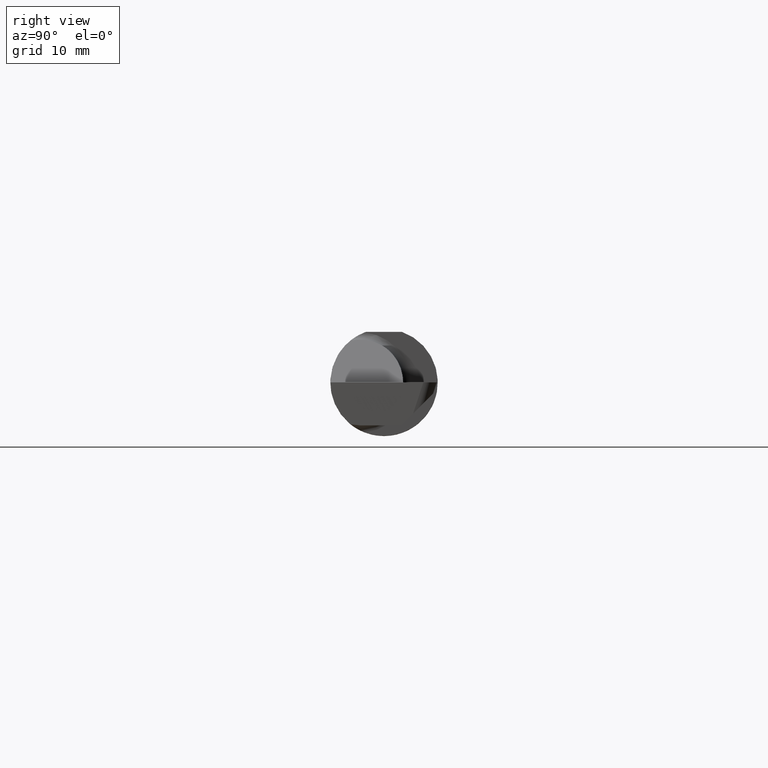
[diagram: clean part render]
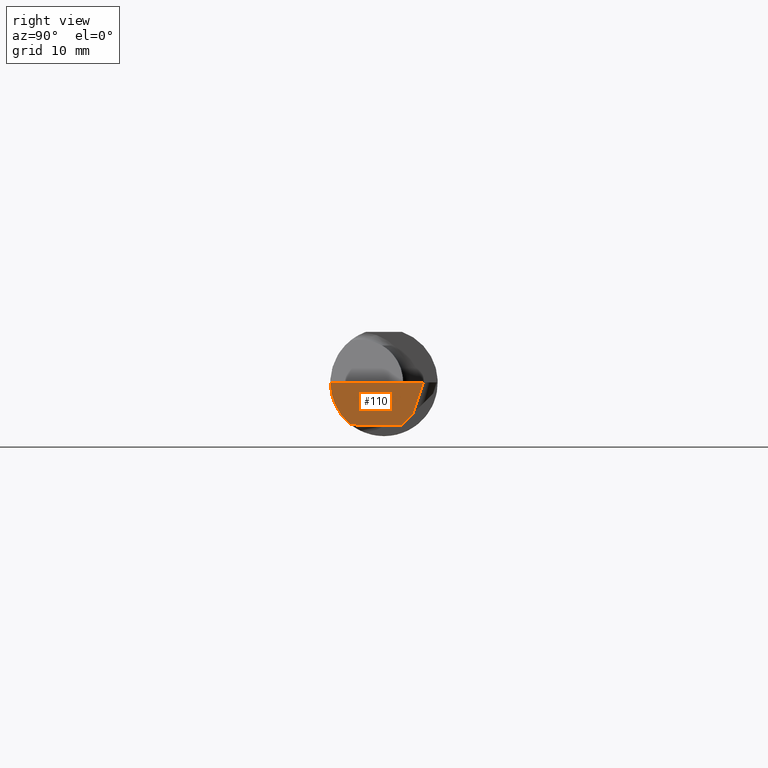
[diagram: same view with one face highlighted and labeled with its STEP entity id]
A machine part, right view. The second image highlights one B-rep face of the part: STEP entity #110.
In plain terms, the highlighted planar face has unit normal (-0.9992, 0.0349, 0.0175).
Its self-contained STEP definition (entity closure, byte-faithful):
#8 = EDGE_LOOP ( 'NONE', ( #624, #511, #582, #270, #173, #238 ) ) ;
#28 = EDGE_CURVE ( 'NONE', #529, #573, #595, .T. ) ;
#37 = CARTESIAN_POINT ( 'NONE',  ( 2.494604638945828956, 0.06030305154315079852, -0.1500000000000000500 ) ) ;
#45 = CARTESIAN_POINT ( 'NONE',  ( 2.489189135516857831, -0.09477667630339421667, -0.1500000000000000500 ) ) ;
#51 = CARTESIAN_POINT ( 'NONE',  ( 2.489588163846105484, -0.08335000000000006293, -0.1500000000000000500 ) ) ;
#68 = EDGE_CURVE ( 'NONE', #573, #299, #207, .T. ) ;
#74 = DIRECTION ( 'NONE',  ( -0.03701744261649742712, -0.7066221440565398915, -0.7066221440565478851 ) ) ;
#105 = CARTESIAN_POINT ( 'NONE',  ( 2.496782013450319582, 0.1018667288808076665, -0.1084363226623427101 ) ) ;
#109 = DIRECTION ( 'NONE',  ( -0.03489949670249319069, -0.9993908270190959842, 0.000000000000000000 ) ) ;
#110 = ADVANCED_FACE ( 'NONE', ( #216 ), #505, .F. ) ;
#124 = VECTOR ( 'NONE', #572, 39.37007874015748143 ) ;
#145 = VECTOR ( 'NONE', #109, 39.37007874015748854 ) ;
#160 =( BOUNDED_CURVE ( )  B_SPLINE_CURVE ( 3, ( #589, #471, #698, #641 ),
 .UNSPECIFIED., .F., .T. ) 
 B_SPLINE_CURVE_WITH_KNOTS ( ( 4, 4 ),
 ( 5.852427379562185727, 6.746954780470634461 ),
 .UNSPECIFIED. ) 
 CURVE ( )  GEOMETRIC_REPRESENTATION_ITEM ( )  RATIONAL_B_SPLINE_CURVE ( ( 1.000000000000000000, 0.9344226172588800949, 0.9344226172588800949, 1.000000000000000000 ) ) 
 REPRESENTATION_ITEM ( '' )  );
#172 = DIRECTION ( 'NONE',  ( -0.9992386149554828290, 0.03489418134010589118, 0.01745240643728358451 ) ) ;
#173 = ORIENTED_EDGE ( 'NONE', *, *, #600, .T. ) ;
#181 = VECTOR ( 'NONE', #706, 39.37007874015748854 ) ;
#185 =( BOUNDED_CURVE ( )  B_SPLINE_CURVE ( 3, ( #477, #549, #45, #51 ),
 .UNSPECIFIED., .F., .T. ) 
 B_SPLINE_CURVE_WITH_KNOTS ( ( 4, 4 ),
 ( 0.8789888184544055738, 1.107026853503848773 ),
 .UNSPECIFIED. ) 
 CURVE ( )  GEOMETRIC_REPRESENTATION_ITEM ( )  RATIONAL_B_SPLINE_CURVE ( ( 1.000000000000000000, 0.9956712472009929815, 0.9956712472009929815, 1.000000000000000000 ) ) 
 REPRESENTATION_ITEM ( '' )  );
#187 = VERTEX_POINT ( 'NONE', #37 ) ;
#189 = EDGE_CURVE ( 'NONE', #376, #299, #160, .T. ) ;
#207 = LINE ( 'NONE', #209, #145 ) ;
#209 = CARTESIAN_POINT ( 'NONE',  ( 2.499973137204639428, 0.1390138764844880415, 0.000000000000000000 ) ) ;
#216 = FACE_OUTER_BOUND ( 'NONE', #8, .T. ) ;
#225 = AXIS2_PLACEMENT_3D ( 'NONE', #272, #172, #492 ) ;
#238 = ORIENTED_EDGE ( 'NONE', *, *, #683, .F. ) ;
#246 = CARTESIAN_POINT ( 'NONE',  ( 2.497044125482537957, 0.1068701584290903256, -0.1034328931140599817 ) ) ;
#270 = ORIENTED_EDGE ( 'NONE', *, *, #189, .F. ) ;
#272 = CARTESIAN_POINT ( 'NONE',  ( 2.499973137204639428, 0.1390138764844880415, 0.000000000000000000 ) ) ;
#278 = CARTESIAN_POINT ( 'NONE',  ( 2.488576259503493926, -0.1873499999999999888, 0.000000000000000000 ) ) ;
#299 = VERTEX_POINT ( 'NONE', #278 ) ;
#340 = VERTEX_POINT ( 'NONE', #380 ) ;
#375 = CARTESIAN_POINT ( 'NONE',  ( 2.499922542640338197, 0.1372830298860648612, 0.0005638438891804186011 ) ) ;
#376 = VERTEX_POINT ( 'NONE', #441 ) ;
#380 = CARTESIAN_POINT ( 'NONE',  ( 2.489588163846105484, -0.08335000000000006293, -0.1500000000000000500 ) ) ;
#381 = VECTOR ( 'NONE', #74, 39.37007874015748854 ) ;
#393 = LINE ( 'NONE', #246, #381 ) ;
#430 = EDGE_CURVE ( 'NONE', #529, #187, #393, .T. ) ;
#441 = CARTESIAN_POINT ( 'NONE',  ( 2.488471823259917226, -0.1172600179964005951, -0.1461167706989303927 ) ) ;
#444 = LINE ( 'NONE', #616, #124 ) ;
#471 = CARTESIAN_POINT ( 'NONE',  ( 2.487529306701961485, -0.1623470442677540093, -0.1099340280425339378 ) ) ;
#477 = CARTESIAN_POINT ( 'NONE',  ( 2.488471823259917226, -0.1172600179964005951, -0.1461167706989303927 ) ) ;
#492 = DIRECTION ( 'NONE',  ( -0.03489949670249319069, -0.9993908270190959842, 0.000000000000000000 ) ) ;
#505 = PLANE ( 'NONE',  #225 ) ;
#511 = ORIENTED_EDGE ( 'NONE', *, *, #28, .T. ) ;
#529 = VERTEX_POINT ( 'NONE', #105 ) ;
#549 = CARTESIAN_POINT ( 'NONE',  ( 2.488815404197634251, -0.1061291577212408743, -0.1486999626928446339 ) ) ;
#572 = DIRECTION ( 'NONE',  ( -0.03489949670249319069, -0.9993908270190959842, 0.000000000000000000 ) ) ;
#573 = VERTEX_POINT ( 'NONE', #599 ) ;
#582 = ORIENTED_EDGE ( 'NONE', *, *, #68, .T. ) ;
#589 = CARTESIAN_POINT ( 'NONE',  ( 2.488471823259917226, -0.1172600179964005951, -0.1461167706989303927 ) ) ;
#595 = LINE ( 'NONE', #375, #181 ) ;
#599 = CARTESIAN_POINT ( 'NONE',  ( 2.499906297085412898, 0.1370998259008695541, 0.000000000000000000 ) ) ;
#600 = EDGE_CURVE ( 'NONE', #376, #340, #185, .T. ) ;
#616 = CARTESIAN_POINT ( 'NONE',  ( 2.489884857891535574, -0.07485379416751693216, -0.1500000000000000500 ) ) ;
#624 = ORIENTED_EDGE ( 'NONE', *, *, #430, .F. ) ;
#641 = CARTESIAN_POINT ( 'NONE',  ( 2.488576259503493926, -0.1873499999999999888, 0.000000000000000000 ) ) ;
#683 = EDGE_CURVE ( 'NONE', #187, #340, #444, .T. ) ;
#698 = CARTESIAN_POINT ( 'NONE',  ( 2.487566561880238947, -0.1873499999999999610, -0.05781030015605118089 ) ) ;
#706 = DIRECTION ( 'NONE',  ( 0.02739170151059986541, 0.3089010440752013031, 0.9506996579664918068 ) ) ;